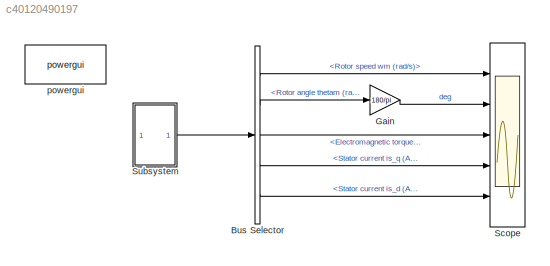
MODEL slx_c40120490197
KIND model
CONFIG AbsTol = auto
CONFIG EnableMultiTasking = off
CONFIG FixedStep = auto
CONFIG MaxStep = auto
CONFIG MinStep = auto
CONFIG RelTol = 1e-3
CONFIG SampleTimeConstraint = Unconstrained
CONFIG Solver = VariableStepAuto
CONFIG SolverName = VariableStepAuto
CONFIG StartTime = 0.0
CONFIG StopTime = 0.4
BLOCK [BusSelector] Bus Selector
  OutputAsBus = off
  OutputSignals = Rotor speed wm (rad/s),Rotor angle thetam (rad),Electromagnetic torque Te (N*m),Stator current is_q (A),Stator current is_d (A)
  Ports = [1, 5]
BLOCK [Gain] Gain
  Gain = 180/pi
  OutDataTypeStr = Inherit: Inherit via internal rule
  ParamDataTypeStr = Inherit: Inherit via internal rule
  SaturateOnIntegerOverflow = off
BLOCK [Scope] Scope
  Floating = off
  NumInputPorts = 5
  Ports = [5]
  ScopeSpecificationString = Simulink.scopes.TimeScopeBlockCfg('CurrentConfiguration', extmgr.ConfigurationSet(extmgr.Configuration('Core','General UI',true),extmgr.Configuration('Core','Source UI',true),extmgr.Configuration('Sources','WiredSimulink',true),extmgr.Configuration('Visuals','Time Domain',true,'SerializedDisplays',{struct('MinYLimReal','-2.27067','MaxYLimReal','20.43604','YLabelReal','','MinYLimMag','0.00000','Max...<+4260ch>
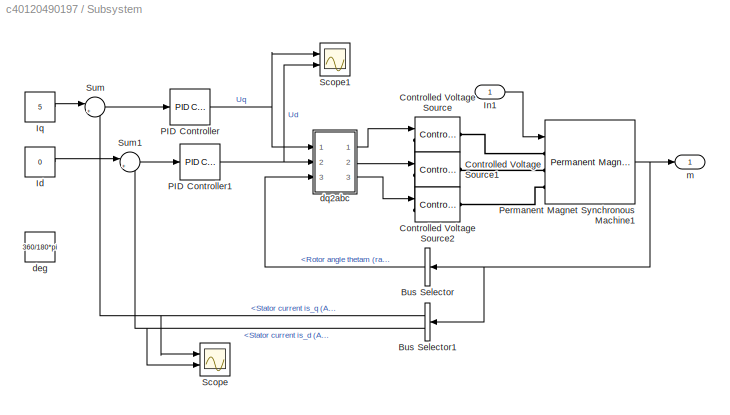
BLOCK [SubSystem] Subsystem
  Ports = [1, 1]
  RequestExecContextInheritance = off
BLOCK [BusSelector] Subsystem/Bus Selector
  OutputAsBus = off
  OutputSignals = Rotor angle thetam (rad)
  Ports = [1, 1]
BLOCK [BusSelector] Subsystem/Bus Selector1
  OutputAsBus = off
  OutputSignals = Stator current is_q (A),Stator current is_d (A)
  Ports = [1, 2]
BLOCK [Reference] Subsystem/Controlled Voltage Source  REF=powerlib/Electrical
Sources/Controlled Voltage Source
  Ports = [1, 0, 0, 0, 0, 1, 1]
  SourceBlock = powerlib/Electrical\nSources/Controlled Voltage Source
  SourceProductBaseCode = PS
  SourceProductName = Simscape Power Systems
  SourceType = Controlled Voltage Source
BLOCK [Reference] Subsystem/Controlled Voltage Source1  REF=powerlib/Electrical
Sources/Controlled Voltage Source
  Ports = [1, 0, 0, 0, 0, 1, 1]
  SourceBlock = powerlib/Electrical\nSources/Controlled Voltage Source
  SourceProductBaseCode = PS
  SourceProductName = Simscape Power Systems
  SourceType = Controlled Voltage Source
BLOCK [Reference] Subsystem/Controlled Voltage Source2  REF=powerlib/Electrical
Sources/Controlled Voltage Source
  Ports = [1, 0, 0, 0, 0, 1, 1]
  SourceBlock = powerlib/Electrical\nSources/Controlled Voltage Source
  SourceProductBaseCode = PS
  SourceProductName = Simscape Power Systems
  SourceType = Controlled Voltage Source
BLOCK [Constant] Subsystem/Id
  Value = 0
BLOCK [Inport] Subsystem/In1
  IconDisplay = Port number
BLOCK [Constant] Subsystem/Iq
  Value = 5
BLOCK [Reference] Subsystem/PID Controller  REF=simulink/Continuous/PID Controller
  Ports = [1, 1]
  SourceBlock = simulink/Continuous/PID Controller
  SourceProductBaseCode = SL
  SourceProductName = Simulink
  SourceType = PID 1dof
BLOCK [Reference] Subsystem/PID Controller1  REF=simulink/Continuous/PID Controller
  Ports = [1, 1]
  SourceBlock = simulink/Continuous/PID Controller
  SourceProductBaseCode = SL
  SourceProductName = Simulink
  SourceType = PID 1dof
BLOCK [Reference] Subsystem/Permanent Magnet Synchronous Machine1  REF=powerlib/Machines/Permanent Magnet
Synchronous Machine
  Ports = [1, 1, 0, 0, 0, 3]
  SourceBlock = powerlib/Machines/Permanent Magnet\nSynchronous Machine
  SourceProductBaseCode = PS
  SourceProductName = Simscape Power Systems
  SourceType = Permanent Magnet Synchronous Machine
BLOCK [Scope] Subsystem/Scope
  Floating = off
  NumInputPorts = 2
  Ports = [2]
  ScopeSpecificationString = Simulink.scopes.TimeScopeBlockCfg('CurrentConfiguration', extmgr.ConfigurationSet(extmgr.Configuration('Core','General UI',true),extmgr.Configuration('Core','Source UI',true),extmgr.Configuration('Sources','WiredSimulink',true,'DataLoggingVariableName','ScopeData1'),extmgr.Configuration('Visuals','Time Domain',true,'SerializedDisplays',{struct('MinYLimReal','-0.62514','MaxYLimReal','5.62624','YLab...<+2701ch>
BLOCK [Scope] Subsystem/Scope1
  Floating = off
  NumInputPorts = 2
  Ports = [2]
  ScopeSpecificationString = Simulink.scopes.TimeScopeBlockCfg('CurrentConfiguration', extmgr.ConfigurationSet(extmgr.Configuration('Core','General UI',true),extmgr.Configuration('Core','Source UI',true),extmgr.Configuration('Sources','WiredSimulink',true,'DataLoggingVariableName','ScopeData2'),extmgr.Configuration('Visuals','Time Domain',true,'SerializedDisplays',{struct('MinYLimReal','-12.22332','MaxYLimReal','112.46926','Y...<+2661ch>
BLOCK [Sum] Subsystem/Sum
  IconShape = round
  InputSameDT = off
  Inputs = |+-
  OutDataTypeStr = Inherit: Inherit via internal rule
  Ports = [2, 1]
  SaturateOnIntegerOverflow = off
BLOCK [Sum] Subsystem/Sum1
  IconShape = round
  InputSameDT = off
  Inputs = |+-
  OutDataTypeStr = Inherit: Inherit via internal rule
  Ports = [2, 1]
  SaturateOnIntegerOverflow = off
BLOCK [Constant] Subsystem/deg
  Value = 360/180*pi
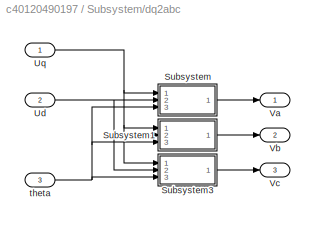
BLOCK [SubSystem] Subsystem/dq2abc
  Ports = [3, 3]
  RequestExecContextInheritance = off
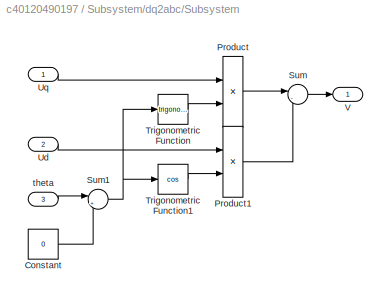
BLOCK [SubSystem] Subsystem/dq2abc/Subsystem
  Ports = [3, 1]
  RequestExecContextInheritance = off
BLOCK [Constant] Subsystem/dq2abc/Subsystem/Constant
  Value = 0
BLOCK [Product] Subsystem/dq2abc/Subsystem/Product
  InputSameDT = off
  OutDataTypeStr = Inherit: Inherit via internal rule
  Ports = [2, 1]
  RndMeth = Floor
  SaturateOnIntegerOverflow = off
BLOCK [Product] Subsystem/dq2abc/Subsystem/Product1
  InputSameDT = off
  OutDataTypeStr = Inherit: Inherit via internal rule
  Ports = [2, 1]
  RndMeth = Floor
  SaturateOnIntegerOverflow = off
BLOCK [Sum] Subsystem/dq2abc/Subsystem/Sum
  IconShape = round
  InputSameDT = off
  Inputs = |-+
  OutDataTypeStr = Inherit: Inherit via internal rule
  Ports = [2, 1]
  SaturateOnIntegerOverflow = off
BLOCK [Sum] Subsystem/dq2abc/Subsystem/Sum1
  IconShape = round
  InputSameDT = off
  Inputs = |++
  OutDataTypeStr = Inherit: Inherit via internal rule
  Ports = [2, 1]
  SaturateOnIntegerOverflow = off
BLOCK [Trigonometry] Subsystem/dq2abc/Subsystem/Trigonometric Function
  Ports = [1, 1]
BLOCK [Trigonometry] Subsystem/dq2abc/Subsystem/Trigonometric Function1
  Operator = cos
  Ports = [1, 1]
BLOCK [Inport] Subsystem/dq2abc/Subsystem/Ud
  IconDisplay = Port number
  Port = 2
BLOCK [Inport] Subsystem/dq2abc/Subsystem/Uq
  IconDisplay = Port number
BLOCK [Outport] Subsystem/dq2abc/Subsystem/V
  IconDisplay = Port number
BLOCK [Inport] Subsystem/dq2abc/Subsystem/theta
  IconDisplay = Port number
  Port = 3
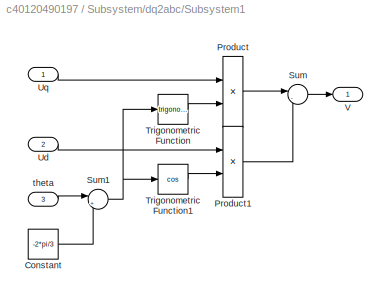
BLOCK [SubSystem] Subsystem/dq2abc/Subsystem1
  Ports = [3, 1]
  RequestExecContextInheritance = off
BLOCK [Constant] Subsystem/dq2abc/Subsystem1/Constant
  Value = -2*pi/3
BLOCK [Product] Subsystem/dq2abc/Subsystem1/Product
  InputSameDT = off
  OutDataTypeStr = Inherit: Inherit via internal rule
  Ports = [2, 1]
  RndMeth = Floor
  SaturateOnIntegerOverflow = off
BLOCK [Product] Subsystem/dq2abc/Subsystem1/Product1
  InputSameDT = off
  OutDataTypeStr = Inherit: Inherit via internal rule
  Ports = [2, 1]
  RndMeth = Floor
  SaturateOnIntegerOverflow = off
BLOCK [Sum] Subsystem/dq2abc/Subsystem1/Sum
  IconShape = round
  InputSameDT = off
  Inputs = |-+
  OutDataTypeStr = Inherit: Inherit via internal rule
  Ports = [2, 1]
  SaturateOnIntegerOverflow = off
BLOCK [Sum] Subsystem/dq2abc/Subsystem1/Sum1
  IconShape = round
  InputSameDT = off
  Inputs = |++
  OutDataTypeStr = Inherit: Inherit via internal rule
  Ports = [2, 1]
  SaturateOnIntegerOverflow = off
BLOCK [Trigonometry] Subsystem/dq2abc/Subsystem1/Trigonometric Function
  Ports = [1, 1]
BLOCK [Trigonometry] Subsystem/dq2abc/Subsystem1/Trigonometric Function1
  Operator = cos
  Ports = [1, 1]
BLOCK [Inport] Subsystem/dq2abc/Subsystem1/Ud
  IconDisplay = Port number
  Port = 2
BLOCK [Inport] Subsystem/dq2abc/Subsystem1/Uq
  IconDisplay = Port number
BLOCK [Outport] Subsystem/dq2abc/Subsystem1/V
  IconDisplay = Port number
BLOCK [Inport] Subsystem/dq2abc/Subsystem1/theta
  IconDisplay = Port number
  Port = 3
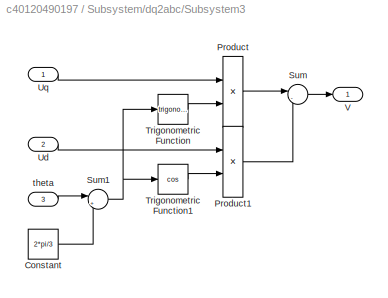
BLOCK [SubSystem] Subsystem/dq2abc/Subsystem3
  Ports = [3, 1]
  RequestExecContextInheritance = off
BLOCK [Constant] Subsystem/dq2abc/Subsystem3/Constant
  Value = 2*pi/3
BLOCK [Product] Subsystem/dq2abc/Subsystem3/Product
  InputSameDT = off
  OutDataTypeStr = Inherit: Inherit via internal rule
  Ports = [2, 1]
  RndMeth = Floor
  SaturateOnIntegerOverflow = off
BLOCK [Product] Subsystem/dq2abc/Subsystem3/Product1
  InputSameDT = off
  OutDataTypeStr = Inherit: Inherit via internal rule
  Ports = [2, 1]
  RndMeth = Floor
  SaturateOnIntegerOverflow = off
BLOCK [Sum] Subsystem/dq2abc/Subsystem3/Sum
  IconShape = round
  InputSameDT = off
  Inputs = |-+
  OutDataTypeStr = Inherit: Inherit via internal rule
  Ports = [2, 1]
  SaturateOnIntegerOverflow = off
BLOCK [Sum] Subsystem/dq2abc/Subsystem3/Sum1
  IconShape = round
  InputSameDT = off
  Inputs = |++
  OutDataTypeStr = Inherit: Inherit via internal rule
  Ports = [2, 1]
  SaturateOnIntegerOverflow = off
BLOCK [Trigonometry] Subsystem/dq2abc/Subsystem3/Trigonometric Function
  Ports = [1, 1]
BLOCK [Trigonometry] Subsystem/dq2abc/Subsystem3/Trigonometric Function1
  Operator = cos
  Ports = [1, 1]
BLOCK [Inport] Subsystem/dq2abc/Subsystem3/Ud
  IconDisplay = Port number
  Port = 2
BLOCK [Inport] Subsystem/dq2abc/Subsystem3/Uq
  IconDisplay = Port number
BLOCK [Outport] Subsystem/dq2abc/Subsystem3/V
  IconDisplay = Port number
BLOCK [Inport] Subsystem/dq2abc/Subsystem3/theta
  IconDisplay = Port number
  Port = 3
BLOCK [Inport] Subsystem/dq2abc/Ud
  IconDisplay = Port number
  Port = 2
BLOCK [Inport] Subsystem/dq2abc/Uq
  IconDisplay = Port number
BLOCK [Outport] Subsystem/dq2abc/Va
  IconDisplay = Port number
BLOCK [Outport] Subsystem/dq2abc/Vb
  IconDisplay = Port number
  Port = 2
BLOCK [Outport] Subsystem/dq2abc/Vc
  IconDisplay = Port number
  Port = 3
BLOCK [Inport] Subsystem/dq2abc/theta
  IconDisplay = Port number
  Port = 3
BLOCK [Outport] Subsystem/m
  IconDisplay = Port number
BLOCK [Reference] powergui  REF=powerlib/powergui
  Ports = []
  Priority = 1
  SourceBlock = powerlib/powergui
  SourceProductBaseCode = PS
  SourceProductName = Simscape Power Systems
  SourceType = PSB option menu block
LINE Bus Selector:1 -> Scope:1
LINE Bus Selector:2 -> Gain:1
LINE Bus Selector:3 -> Scope:3
LINE Bus Selector:4 -> Scope:4
LINE Bus Selector:5 -> Scope:5
LINE Gain:1 -> Scope:2
NET Subsystem/Bus Selector1:1 -> Subsystem/Scope:1, Subsystem/Sum:2
NET Subsystem/Bus Selector1:2 -> Subsystem/Scope:2, Subsystem/Sum1:2
LINE Subsystem/Bus Selector:1 -> Subsystem/dq2abc:3
LINE Subsystem/Id:1 -> Subsystem/Sum1:1
LINE Subsystem/In1:1 -> Subsystem/Permanent Magnet Synchronous Machine1:1
LINE Subsystem/Iq:1 -> Subsystem/Sum:1
NET Subsystem/PID Controller1:1 -> Subsystem/Scope1:2, Subsystem/dq2abc:2
NET Subsystem/PID Controller:1 -> Subsystem/Scope1:1, Subsystem/dq2abc:1
NET Subsystem/Permanent Magnet Synchronous Machine1:1 -> Subsystem/Bus Selector1:1, Subsystem/Bus Selector:1, Subsystem/m:1
LINE Subsystem/Sum1:1 -> Subsystem/PID Controller1:1
LINE Subsystem/Sum:1 -> Subsystem/PID Controller:1
LINE Subsystem/dq2abc/Subsystem/Constant:1 -> Subsystem/dq2abc/Subsystem/Sum1:2
LINE Subsystem/dq2abc/Subsystem/Product1:1 -> Subsystem/dq2abc/Subsystem/Sum:2
LINE Subsystem/dq2abc/Subsystem/Product:1 -> Subsystem/dq2abc/Subsystem/Sum:1
NET Subsystem/dq2abc/Subsystem/Sum1:1 -> Subsystem/dq2abc/Subsystem/Trigonometric Function1:1, Subsystem/dq2abc/Subsystem/Trigonometric Function:1
LINE Subsystem/dq2abc/Subsystem/Sum:1 -> Subsystem/dq2abc/Subsystem/V:1
LINE Subsystem/dq2abc/Subsystem/Trigonometric Function1:1 -> Subsystem/dq2abc/Subsystem/Product1:2
LINE Subsystem/dq2abc/Subsystem/Trigonometric Function:1 -> Subsystem/dq2abc/Subsystem/Product:2
LINE Subsystem/dq2abc/Subsystem/Ud:1 -> Subsystem/dq2abc/Subsystem/Product1:1
LINE Subsystem/dq2abc/Subsystem/Uq:1 -> Subsystem/dq2abc/Subsystem/Product:1
LINE Subsystem/dq2abc/Subsystem/theta:1 -> Subsystem/dq2abc/Subsystem/Sum1:1
LINE Subsystem/dq2abc/Subsystem1/Constant:1 -> Subsystem/dq2abc/Subsystem1/Sum1:2
LINE Subsystem/dq2abc/Subsystem1/Product1:1 -> Subsystem/dq2abc/Subsystem1/Sum:2
LINE Subsystem/dq2abc/Subsystem1/Product:1 -> Subsystem/dq2abc/Subsystem1/Sum:1
NET Subsystem/dq2abc/Subsystem1/Sum1:1 -> Subsystem/dq2abc/Subsystem1/Trigonometric Function1:1, Subsystem/dq2abc/Subsystem1/Trigonometric Function:1
LINE Subsystem/dq2abc/Subsystem1/Sum:1 -> Subsystem/dq2abc/Subsystem1/V:1
LINE Subsystem/dq2abc/Subsystem1/Trigonometric Function1:1 -> Subsystem/dq2abc/Subsystem1/Product1:2
LINE Subsystem/dq2abc/Subsystem1/Trigonometric Function:1 -> Subsystem/dq2abc/Subsystem1/Product:2
LINE Subsystem/dq2abc/Subsystem1/Ud:1 -> Subsystem/dq2abc/Subsystem1/Product1:1
LINE Subsystem/dq2abc/Subsystem1/Uq:1 -> Subsystem/dq2abc/Subsystem1/Product:1
LINE Subsystem/dq2abc/Subsystem1/theta:1 -> Subsystem/dq2abc/Subsystem1/Sum1:1
LINE Subsystem/dq2abc/Subsystem1:1 -> Subsystem/dq2abc/Vb:1
LINE Subsystem/dq2abc/Subsystem3/Constant:1 -> Subsystem/dq2abc/Subsystem3/Sum1:2
LINE Subsystem/dq2abc/Subsystem3/Product1:1 -> Subsystem/dq2abc/Subsystem3/Sum:2
LINE Subsystem/dq2abc/Subsystem3/Product:1 -> Subsystem/dq2abc/Subsystem3/Sum:1
NET Subsystem/dq2abc/Subsystem3/Sum1:1 -> Subsystem/dq2abc/Subsystem3/Trigonometric Function1:1, Subsystem/dq2abc/Subsystem3/Trigonometric Function:1
LINE Subsystem/dq2abc/Subsystem3/Sum:1 -> Subsystem/dq2abc/Subsystem3/V:1
LINE Subsystem/dq2abc/Subsystem3/Trigonometric Function1:1 -> Subsystem/dq2abc/Subsystem3/Product1:2
LINE Subsystem/dq2abc/Subsystem3/Trigonometric Function:1 -> Subsystem/dq2abc/Subsystem3/Product:2
LINE Subsystem/dq2abc/Subsystem3/Ud:1 -> Subsystem/dq2abc/Subsystem3/Product1:1
LINE Subsystem/dq2abc/Subsystem3/Uq:1 -> Subsystem/dq2abc/Subsystem3/Product:1
LINE Subsystem/dq2abc/Subsystem3/theta:1 -> Subsystem/dq2abc/Subsystem3/Sum1:1
LINE Subsystem/dq2abc/Subsystem3:1 -> Subsystem/dq2abc/Vc:1
LINE Subsystem/dq2abc/Subsystem:1 -> Subsystem/dq2abc/Va:1
NET Subsystem/dq2abc/Ud:1 -> Subsystem/dq2abc/Subsystem1:2, Subsystem/dq2abc/Subsystem3:2, Subsystem/dq2abc/Subsystem:2
NET Subsystem/dq2abc/Uq:1 -> Subsystem/dq2abc/Subsystem1:1, Subsystem/dq2abc/Subsystem3:1, Subsystem/dq2abc/Subsystem:1
NET Subsystem/dq2abc/theta:1 -> Subsystem/dq2abc/Subsystem1:3, Subsystem/dq2abc/Subsystem3:3, Subsystem/dq2abc/Subsystem:3
LINE Subsystem/dq2abc:1 -> Subsystem/Controlled Voltage Source:1
LINE Subsystem/dq2abc:2 -> Subsystem/Controlled Voltage Source1:1
LINE Subsystem/dq2abc:3 -> Subsystem/Controlled Voltage Source2:1
LINE Subsystem:1 -> Bus Selector:1
PNET net1: Subsystem/Controlled Voltage Source1:LConn1 -- Subsystem/Controlled Voltage Source2:LConn1 -- Subsystem/Controlled Voltage Source:LConn1
PLINE Subsystem/Controlled Voltage Source1:RConn1 -- Subsystem/Permanent Magnet Synchronous Machine1:LConn2
PLINE Subsystem/Controlled Voltage Source2:RConn1 -- Subsystem/Permanent Magnet Synchronous Machine1:LConn3
PLINE Subsystem/Controlled Voltage Source:RConn1 -- Subsystem/Permanent Magnet Synchronous Machine1:LConn1
note: NET lines group one-source signal fan-out (src -> all destinations, sorted); 1:1 wires keep LINE; PNET lines group multi-terminal physical nets as a canonical sorted terminal list (undirected conserving connections); 2-terminal nets keep the pairwise PLINE form
